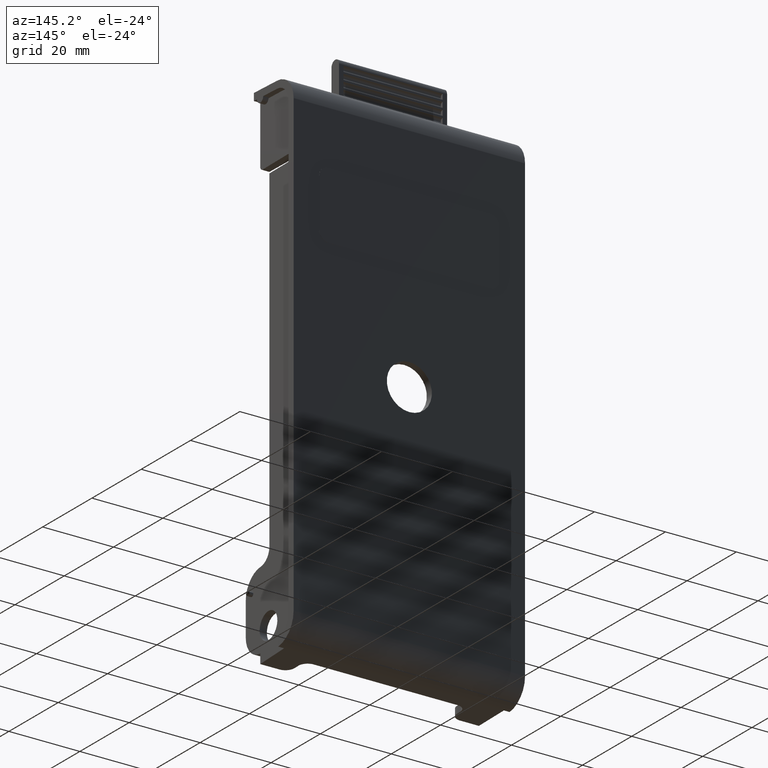
[diagram: clean part render]
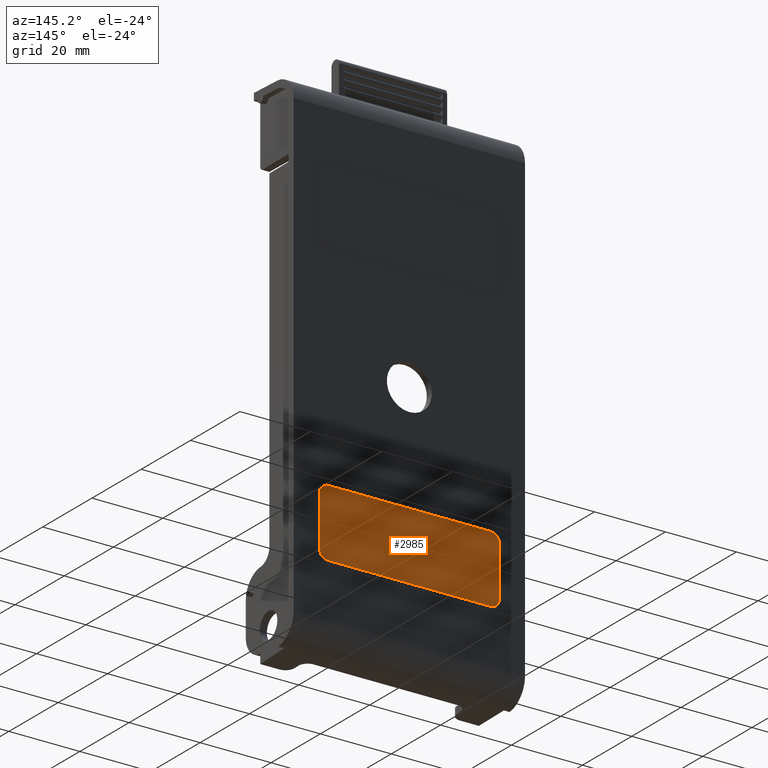
[diagram: same view with one face highlighted and labeled with its STEP entity id]
A machine part, auxiliary view. The second image highlights one B-rep face of the part: STEP entity #2985.
In plain terms, the highlighted planar face has unit normal (0, 1, 0).
Its self-contained STEP definition (entity closure, byte-faithful):
#73 = DIRECTION ( 'NONE',  ( -0.0000000000000000000, 1.000000000000000000, -0.0000000000000000000 ) ) ;
#305 = CARTESIAN_POINT ( 'NONE',  ( -0.9000000000000001300, 0.6360000000000000100, -1.960000000000000000 ) ) ;
#351 = DIRECTION ( 'NONE',  ( 1.000000000000000000, 0.0000000000000000000, 0.0000000000000000000 ) ) ;
#411 = CARTESIAN_POINT ( 'NONE',  ( -0.9000000000000001300, 0.6360000000000000100, -1.210000000000000000 ) ) ;
#453 = LINE ( 'NONE', #2426, #1525 ) ;
#517 = VERTEX_POINT ( 'NONE', #4334 ) ;
#555 = ORIENTED_EDGE ( 'NONE', *, *, #1960, .T. ) ;
#588 = FACE_OUTER_BOUND ( 'NONE', #4812, .T. ) ;
#597 = CARTESIAN_POINT ( 'NONE',  ( 0.9000000000000001300, 0.6360000000000000100, -1.310000000000000100 ) ) ;
#600 = DIRECTION ( 'NONE',  ( 0.0000000000000000000, 1.000000000000000000, 0.0000000000000000000 ) ) ;
#608 = DIRECTION ( 'NONE',  ( 0.0000000000000000000, 0.0000000000000000000, 1.000000000000000000 ) ) ;
#760 = CIRCLE ( 'NONE', #4386, 0.1000000000000000200 ) ;
#775 = DIRECTION ( 'NONE',  ( 0.0000000000000000000, 0.0000000000000000000, 1.000000000000000000 ) ) ;
#776 = AXIS2_PLACEMENT_3D ( 'NONE', #1456, #4482, #3089 ) ;
#808 = CARTESIAN_POINT ( 'NONE',  ( -0.9000000000000001300, 0.6360000000000000100, -1.310000000000000100 ) ) ;
#815 = VECTOR ( 'NONE', #2869, 39.37007874015748100 ) ;
#848 = EDGE_CURVE ( 'NONE', #2517, #934, #4603, .T. ) ;
#878 = LINE ( 'NONE', #3050, #815 ) ;
#888 = ORIENTED_EDGE ( 'NONE', *, *, #848, .T. ) ;
#909 = CIRCLE ( 'NONE', #4830, 0.1000000000000000200 ) ;
#934 = VERTEX_POINT ( 'NONE', #3694 ) ;
#1038 = EDGE_CURVE ( 'NONE', #1938, #2517, #909, .T. ) ;
#1116 = DIRECTION ( 'NONE',  ( 0.0000000000000000000, 1.000000000000000000, 0.0000000000000000000 ) ) ;
#1160 = CARTESIAN_POINT ( 'NONE',  ( -0.9000000000000001300, 0.6360000000000000100, -1.210000000000000000 ) ) ;
#1325 = AXIS2_PLACEMENT_3D ( 'NONE', #808, #1116, #775 ) ;
#1456 = CARTESIAN_POINT ( 'NONE',  ( -0.9000000000000001300, 0.6360000000000000100, -1.310000000000000100 ) ) ;
#1525 = VECTOR ( 'NONE', #2440, 39.37007874015748100 ) ;
#1895 = EDGE_CURVE ( 'NONE', #3169, #1938, #453, .T. ) ;
#1938 = VERTEX_POINT ( 'NONE', #305 ) ;
#1960 = EDGE_CURVE ( 'NONE', #2065, #517, #4764, .T. ) ;
#2065 = VERTEX_POINT ( 'NONE', #1160 ) ;
#2245 = CARTESIAN_POINT ( 'NONE',  ( 0.9000000000000001300, 0.6360000000000000100, -1.859999999999999900 ) ) ;
#2257 = EDGE_CURVE ( 'NONE', #934, #2065, #2725, .T. ) ;
#2327 = ORIENTED_EDGE ( 'NONE', *, *, #1895, .T. ) ;
#2426 = CARTESIAN_POINT ( 'NONE',  ( -0.9000000000000001300, 0.6360000000000000100, -1.960000000000000200 ) ) ;
#2440 = DIRECTION ( 'NONE',  ( -1.000000000000000000, -0.0000000000000000000, -0.0000000000000000000 ) ) ;
#2501 = ORIENTED_EDGE ( 'NONE', *, *, #4083, .T. ) ;
#2517 = VERTEX_POINT ( 'NONE', #4045 ) ;
#2585 = CARTESIAN_POINT ( 'NONE',  ( 1.000000000000000200, 0.6360000000000000100, -1.859999999999999900 ) ) ;
#2631 = ORIENTED_EDGE ( 'NONE', *, *, #3370, .T. ) ;
#2725 = CIRCLE ( 'NONE', #1325, 0.1000000000000000200 ) ;
#2869 = DIRECTION ( 'NONE',  ( 2.483498176058421700E-016, -0.0000000000000000000, -1.000000000000000000 ) ) ;
#2878 = ORIENTED_EDGE ( 'NONE', *, *, #2257, .T. ) ;
#2985 = ADVANCED_FACE ( 'NONE', ( #588 ), #4220, .T. ) ;
#3050 = CARTESIAN_POINT ( 'NONE',  ( 1.000000000000000200, 0.6360000000000000100, -1.859999999999999900 ) ) ;
#3089 = DIRECTION ( 'NONE',  ( 0.0000000000000000000, -0.0000000000000000000, 1.000000000000000000 ) ) ;
#3169 = VERTEX_POINT ( 'NONE', #3502 ) ;
#3244 = DIRECTION ( 'NONE',  ( 0.0000000000000000000, 0.0000000000000000000, -1.000000000000000000 ) ) ;
#3257 = VERTEX_POINT ( 'NONE', #2585 ) ;
#3261 = DIRECTION ( 'NONE',  ( 0.0000000000000000000, 0.0000000000000000000, 1.000000000000000000 ) ) ;
#3268 = DIRECTION ( 'NONE',  ( 0.0000000000000000000, 1.000000000000000000, 0.0000000000000000000 ) ) ;
#3270 = CARTESIAN_POINT ( 'NONE',  ( -0.9000000000000001300, 0.6360000000000000100, -1.859999999999999900 ) ) ;
#3370 = EDGE_CURVE ( 'NONE', #517, #5151, #4612, .T. ) ;
#3479 = AXIS2_PLACEMENT_3D ( 'NONE', #597, #600, #608 ) ;
#3502 = CARTESIAN_POINT ( 'NONE',  ( 0.9000000000000001300, 0.6360000000000000100, -1.960000000000000200 ) ) ;
#3574 = CARTESIAN_POINT ( 'NONE',  ( 1.000000000000000000, 0.6360000000000000100, -1.310000000000000100 ) ) ;
#3694 = CARTESIAN_POINT ( 'NONE',  ( -1.000000000000000000, 0.6360000000000000100, -1.310000000000000100 ) ) ;
#3717 = DIRECTION ( 'NONE',  ( 2.483498176058421700E-016, 0.0000000000000000000, 1.000000000000000000 ) ) ;
#3720 = CARTESIAN_POINT ( 'NONE',  ( -1.000000000000000200, 0.6360000000000000100, -1.859999999999999900 ) ) ;
#3751 = ORIENTED_EDGE ( 'NONE', *, *, #1038, .T. ) ;
#3977 = VECTOR ( 'NONE', #351, 39.37007874015748100 ) ;
#4045 = CARTESIAN_POINT ( 'NONE',  ( -1.000000000000000200, 0.6360000000000000100, -1.859999999999999900 ) ) ;
#4083 = EDGE_CURVE ( 'NONE', #5151, #3257, #878, .T. ) ;
#4220 = PLANE ( 'NONE',  #776 ) ;
#4223 = EDGE_CURVE ( 'NONE', #3257, #3169, #760, .T. ) ;
#4314 = ORIENTED_EDGE ( 'NONE', *, *, #4223, .T. ) ;
#4334 = CARTESIAN_POINT ( 'NONE',  ( 0.9000000000000001300, 0.6360000000000000100, -1.210000000000000000 ) ) ;
#4349 = VECTOR ( 'NONE', #3717, 39.37007874015748100 ) ;
#4386 = AXIS2_PLACEMENT_3D ( 'NONE', #2245, #73, #3244 ) ;
#4482 = DIRECTION ( 'NONE',  ( 0.0000000000000000000, 1.000000000000000000, 0.0000000000000000000 ) ) ;
#4603 = LINE ( 'NONE', #3720, #4349 ) ;
#4612 = CIRCLE ( 'NONE', #3479, 0.1000000000000000200 ) ;
#4764 = LINE ( 'NONE', #411, #3977 ) ;
#4812 = EDGE_LOOP ( 'NONE', ( #2878, #555, #2631, #2501, #4314, #2327, #3751, #888 ) ) ;
#4830 = AXIS2_PLACEMENT_3D ( 'NONE', #3270, #3268, #3261 ) ;
#5151 = VERTEX_POINT ( 'NONE', #3574 ) ;